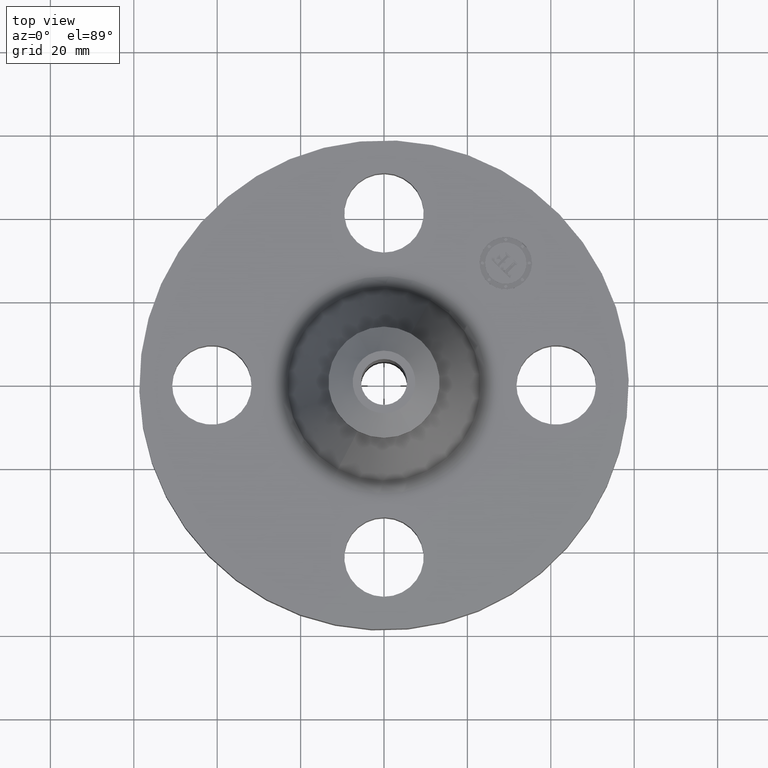
[diagram: clean part render]
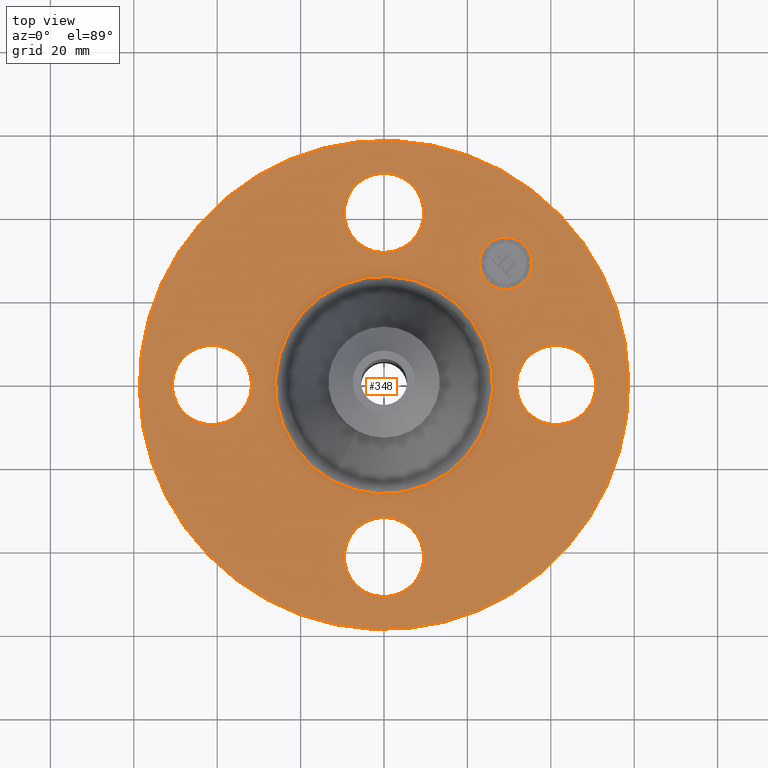
[diagram: same view with one face highlighted and labeled with its STEP entity id]
A machine part, top view. The second image highlights one B-rep face of the part: STEP entity #348.
In plain terms, the highlighted planar face has unit normal (0, 0, -1).
Its self-contained STEP definition (entity closure, byte-faithful):
#107=AXIS2_PLACEMENT_3D('Circle Axis2P3D',#105,#106,$) ;
#234=AXIS2_PLACEMENT_3D('Plane Axis2P3D',#231,#232,#233) ;
#238=AXIS2_PLACEMENT_3D('Circle Axis2P3D',#236,#237,$) ;
#247=AXIS2_PLACEMENT_3D('Circle Axis2P3D',#245,#246,$) ;
#260=AXIS2_PLACEMENT_3D('Circle Axis2P3D',#258,#259,$) ;
#269=AXIS2_PLACEMENT_3D('Circle Axis2P3D',#267,#268,$) ;
#278=AXIS2_PLACEMENT_3D('Circle Axis2P3D',#276,#277,$) ;
#287=AXIS2_PLACEMENT_3D('Circle Axis2P3D',#285,#286,$) ;
#296=AXIS2_PLACEMENT_3D('Circle Axis2P3D',#294,#295,$) ;
#305=AXIS2_PLACEMENT_3D('Circle Axis2P3D',#303,#304,$) ;
#314=AXIS2_PLACEMENT_3D('Circle Axis2P3D',#312,#313,$) ;
#323=AXIS2_PLACEMENT_3D('Circle Axis2P3D',#321,#322,$) ;
#332=AXIS2_PLACEMENT_3D('Circle Axis2P3D',#330,#331,$) ;
#341=AXIS2_PLACEMENT_3D('Circle Axis2P3D',#339,#340,$) ;
#46=CARTESIAN_POINT('Vertex',(1.2959065393,0.179784576977,0.619999999987)) ;
#60=CARTESIAN_POINT('Vertex',(1.95409346071,-0.179784576986,0.620000000002)) ;
#64=CARTESIAN_POINT('Control Point',(1.2959065393,0.179784576977,0.620000000002)) ;
#65=CARTESIAN_POINT('Control Point',(1.32414703461,0.231478456903,0.620000000001)) ;
#66=CARTESIAN_POINT('Control Point',(1.36253759951,0.27762732854,0.620000000001)) ;
#67=CARTESIAN_POINT('Control Point',(1.40963466834,0.315564920645,0.62)) ;
#68=CARTESIAN_POINT('Control Point',(1.51616640576,0.370929207243,0.619999999998)) ;
#69=CARTESIAN_POINT('Control Point',(1.63572322347,0.38190110985,0.619999999997)) ;
#70=CARTESIAN_POINT('Control Point',(1.69585180885,0.375424381748,0.619999999996)) ;
#71=CARTESIAN_POINT('Control Point',(1.81032958528,0.339243530298,0.619999999995)) ;
#72=CARTESIAN_POINT('Control Point',(1.90262732855,0.262462400496,0.619999999993)) ;
#73=CARTESIAN_POINT('Control Point',(1.94056492066,0.215365331668,0.619999999992)) ;
#74=CARTESIAN_POINT('Control Point',(1.99592920725,0.108833594252,0.619999999991)) ;
#75=CARTESIAN_POINT('Control Point',(2.00690110986,-0.0107232234562,0.61999999999)) ;
#76=CARTESIAN_POINT('Control Point',(2.00042438176,-0.0708518088378,0.619999999989)) ;
#77=CARTESIAN_POINT('Control Point',(1.98233395603,-0.128090697051,0.619999999988)) ;
#78=CARTESIAN_POINT('Control Point',(1.95409346072,-0.179784576977,0.619999999987)) ;
#105=CARTESIAN_POINT('Axis2P3D Location',(1.62500000001,0.,0.619999999987)) ;
#231=CARTESIAN_POINT('Axis2P3D Location',(0.,2.31000000001,0.620000000002)) ;
#236=CARTESIAN_POINT('Axis2P3D Location',(-3.08543392061E-011,3.97540268421E-012,0.620000000002)) ;
#240=CARTESIAN_POINT('Vertex',(1.10747299418,2.02721571798,0.620000000016)) ;
#242=CARTESIAN_POINT('Vertex',(-1.10747299418,-2.02721571798,0.620000000016)) ;
#245=CARTESIAN_POINT('Axis2P3D Location',(-5.59482469102E-016,-1.28798459212E-011,0.620000000002)) ;
#258=CARTESIAN_POINT('Axis2P3D Location',(0.,-1.287956618E-011,0.620000000002)) ;
#262=CARTESIAN_POINT('Vertex',(-0.491835211718,-0.900298316156,0.620000000003)) ;
#264=CARTESIAN_POINT('Vertex',(0.491835211721,0.90029831616,0.620000000003)) ;
#267=CARTESIAN_POINT('Axis2P3D Location',(0.,-1.287956618E-011,0.620000000002)) ;
#276=CARTESIAN_POINT('Axis2P3D Location',(-3.49676543189E-017,-1.62500000003,0.620000000002)) ;
#280=CARTESIAN_POINT('Vertex',(-0.179784576973,-1.95409346073,0.620000000002)) ;
#282=CARTESIAN_POINT('Vertex',(0.179784576977,-1.2959065393,0.619999999987)) ;
#285=CARTESIAN_POINT('Axis2P3D Location',(3.49676543189E-017,-1.62500000003,0.620000000002)) ;
#294=CARTESIAN_POINT('Axis2P3D Location',(-1.62500000001,-1.287956618E-011,0.620000000002)) ;
#298=CARTESIAN_POINT('Vertex',(-1.95409346071,0.17978457696,0.620000000002)) ;
#300=CARTESIAN_POINT('Vertex',(-1.2959065393,-0.179784576978,0.619999999987)) ;
#303=CARTESIAN_POINT('Axis2P3D Location',(-1.62500000001,-1.287956618E-011,0.620000000002)) ;
#312=CARTESIAN_POINT('Axis2P3D Location',(3.49676543189E-017,1.625,0.620000000002)) ;
#316=CARTESIAN_POINT('Vertex',(0.179784576973,1.9540934607,0.620000000002)) ;
#318=CARTESIAN_POINT('Vertex',(-0.179784576977,1.2959065393,0.619999999987)) ;
#321=CARTESIAN_POINT('Axis2P3D Location',(-3.49676543189E-017,1.625,0.620000000002)) ;
#330=CARTESIAN_POINT('Axis2P3D Location',(1.14904851942,1.14904851941,0.620000000002)) ;
#334=CARTESIAN_POINT('Vertex',(0.974039591072,1.32405744776,0.620000000002)) ;
#336=CARTESIAN_POINT('Vertex',(1.32405744778,0.974039591059,0.620000000002)) ;
#339=CARTESIAN_POINT('Axis2P3D Location',(1.14904851942,1.14904851941,0.620000000002)) ;
#106=DIRECTION('Axis2P3D Direction',(0.,-0.,-0.0393700787402)) ;
#232=DIRECTION('Axis2P3D Direction',(0.,0.,-0.0393700787402)) ;
#233=DIRECTION('Axis2P3D XDirection',(0.0393700787402,0.,0.)) ;
#237=DIRECTION('Axis2P3D Direction',(0.,0.,-0.0393700787402)) ;
#246=DIRECTION('Axis2P3D Direction',(0.,0.,-0.0393700787402)) ;
#259=DIRECTION('Axis2P3D Direction',(0.,0.,-0.0393700787402)) ;
#268=DIRECTION('Axis2P3D Direction',(0.,0.,-0.0393700787402)) ;
#277=DIRECTION('Axis2P3D Direction',(0.,0.,-0.0393700787402)) ;
#286=DIRECTION('Axis2P3D Direction',(0.,0.,-0.0393700787402)) ;
#295=DIRECTION('Axis2P3D Direction',(0.,0.,-0.0393700787402)) ;
#304=DIRECTION('Axis2P3D Direction',(0.,0.,-0.0393700787402)) ;
#313=DIRECTION('Axis2P3D Direction',(0.,0.,-0.0393700787402)) ;
#322=DIRECTION('Axis2P3D Direction',(0.,0.,-0.0393700787402)) ;
#331=DIRECTION('Axis2P3D Direction',(0.,0.,-0.0393700787402)) ;
#340=DIRECTION('Axis2P3D Direction',(0.,0.,-0.0393700787402)) ;
#251=ORIENTED_EDGE('',*,*,#244,.F.) ;
#252=ORIENTED_EDGE('',*,*,#249,.F.) ;
#255=ORIENTED_EDGE('',*,*,#79,.T.) ;
#256=ORIENTED_EDGE('',*,*,#109,.T.) ;
#273=ORIENTED_EDGE('',*,*,#266,.T.) ;
#274=ORIENTED_EDGE('',*,*,#271,.T.) ;
#291=ORIENTED_EDGE('',*,*,#284,.T.) ;
#292=ORIENTED_EDGE('',*,*,#289,.T.) ;
#309=ORIENTED_EDGE('',*,*,#302,.T.) ;
#310=ORIENTED_EDGE('',*,*,#307,.T.) ;
#327=ORIENTED_EDGE('',*,*,#320,.T.) ;
#328=ORIENTED_EDGE('',*,*,#325,.T.) ;
#345=ORIENTED_EDGE('',*,*,#338,.T.) ;
#346=ORIENTED_EDGE('',*,*,#343,.T.) ;
#257=FACE_BOUND('',#254,.T.) ;
#275=FACE_BOUND('',#272,.T.) ;
#293=FACE_BOUND('',#290,.T.) ;
#311=FACE_BOUND('',#308,.T.) ;
#329=FACE_BOUND('',#326,.T.) ;
#347=FACE_BOUND('',#344,.T.) ;
#348=ADVANCED_FACE('PartBody',(#253,#257,#275,#293,#311,#329,#347),#235,.F.) ;
#63=B_SPLINE_CURVE_WITH_KNOTS('',5,(#64,#65,#66,#67,#68,#69,#70,#71,#72,#73,#74,#75,#76,#77,#78),.UNSPECIFIED.,.F.,.U.,(6,3,3,3,6),(-14.9618350128,-7.48091750638,0.,7.48091750638,14.9618350128),.UNSPECIFIED.) ;
#108=CIRCLE('generated circle',#107,0.375000000001) ;
#239=CIRCLE('generated circle',#238,2.31000000004) ;
#248=CIRCLE('generated circle',#247,2.31000000004) ;
#261=CIRCLE('generated circle',#260,1.02588446404) ;
#270=CIRCLE('generated circle',#269,1.02588446404) ;
#279=CIRCLE('generated circle',#278,0.374999999988) ;
#288=CIRCLE('generated circle',#287,0.374999999988) ;
#297=CIRCLE('generated circle',#296,0.374999999988) ;
#306=CIRCLE('generated circle',#305,0.374999999988) ;
#315=CIRCLE('generated circle',#314,0.374999999988) ;
#324=CIRCLE('generated circle',#323,0.374999999988) ;
#333=CIRCLE('generated circle',#332,0.247500000012) ;
#342=CIRCLE('generated circle',#341,0.247500000012) ;
#79=EDGE_CURVE('',#47,#61,#63,.T.) ;
#109=EDGE_CURVE('',#61,#47,#108,.T.) ;
#244=EDGE_CURVE('',#241,#243,#239,.T.) ;
#249=EDGE_CURVE('',#243,#241,#248,.T.) ;
#266=EDGE_CURVE('',#263,#265,#261,.T.) ;
#271=EDGE_CURVE('',#265,#263,#270,.T.) ;
#284=EDGE_CURVE('',#281,#283,#279,.T.) ;
#289=EDGE_CURVE('',#283,#281,#288,.T.) ;
#302=EDGE_CURVE('',#299,#301,#297,.T.) ;
#307=EDGE_CURVE('',#301,#299,#306,.T.) ;
#320=EDGE_CURVE('',#317,#319,#315,.T.) ;
#325=EDGE_CURVE('',#319,#317,#324,.T.) ;
#338=EDGE_CURVE('',#335,#337,#333,.T.) ;
#343=EDGE_CURVE('',#337,#335,#342,.T.) ;
#250=EDGE_LOOP('',(#251,#252)) ;
#254=EDGE_LOOP('',(#255,#256)) ;
#272=EDGE_LOOP('',(#273,#274)) ;
#290=EDGE_LOOP('',(#291,#292)) ;
#308=EDGE_LOOP('',(#309,#310)) ;
#326=EDGE_LOOP('',(#327,#328)) ;
#344=EDGE_LOOP('',(#345,#346)) ;
#253=FACE_OUTER_BOUND('',#250,.T.) ;
#235=PLANE('',#234) ;
#47=VERTEX_POINT('',#46) ;
#61=VERTEX_POINT('',#60) ;
#241=VERTEX_POINT('',#240) ;
#243=VERTEX_POINT('',#242) ;
#263=VERTEX_POINT('',#262) ;
#265=VERTEX_POINT('',#264) ;
#281=VERTEX_POINT('',#280) ;
#283=VERTEX_POINT('',#282) ;
#299=VERTEX_POINT('',#298) ;
#301=VERTEX_POINT('',#300) ;
#317=VERTEX_POINT('',#316) ;
#319=VERTEX_POINT('',#318) ;
#335=VERTEX_POINT('',#334) ;
#337=VERTEX_POINT('',#336) ;